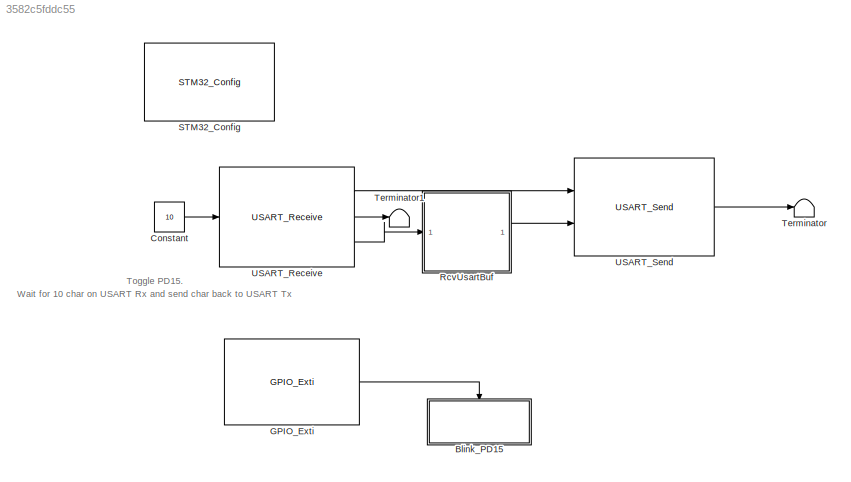
MODEL slx_3582c5fddc55
KIND model
CONFIG AbsTol = auto
CONFIG EnableMultiTasking = on
CONFIG FixedStep = 0.5
CONFIG MaxStep = auto
CONFIG MinStep = auto
CONFIG RelTol = 1e-3
CONFIG SampleTimeConstraint = Unconstrained
CONFIG SolverName = FixedStepDiscrete
CONFIG StartTime = 0.0
CONFIG StopTime = 10.0
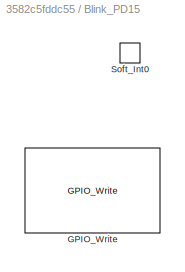
BLOCK [SubSystem] Blink_PD15
  Ports = [0, 0, 0, 1]
  RequestExecContextInheritance = off
  TreatAsAtomicUnit = on
BLOCK [Reference] Blink_PD15/GPIO_Write  REF=GPIO_Lib/GPIO_Write
  NameLocation = top
  Ports = []
  SourceBlock = GPIO_Lib/GPIO_Write
  SourceProductName = Target Support Package - STM32 Adapter
  SourceType = GPIO_Write
BLOCK [TriggerPort] Blink_PD15/Soft_Int0
  Ports = []
  StatesWhenEnabling = held
  TriggerType = function-call
  VariantControl = Variant
BLOCK [Constant] Constant
  OutDataTypeStr = uint16
  Value = 10
BLOCK [Reference] GPIO_Exti  REF=GPIO_Lib/GPIO_Exti
  NameLocation = top
  Ports = [0, 1]
  SourceBlock = GPIO_Lib/GPIO_Exti
  SourceProductName = Target Support Package - STM32 Adapter
  SourceType = GPIO_Exti
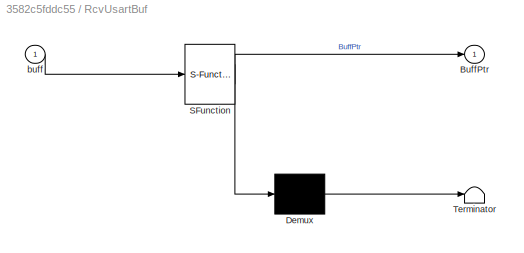
BLOCK [SubSystem] RcvUsartBuf
  ErrorFcn = Stateflow.Translate.translate
  PermitHierarchicalResolution = ExplicitOnly
  Ports = [1, 1]
  RequestExecContextInheritance = off
  SFBlockType = MATLAB Function
  TreatAsAtomicUnit = on
BLOCK [Demux] RcvUsartBuf/ Demux 
  Outputs = 1
  Ports = [1, 1]
BLOCK [S-Function] RcvUsartBuf/ SFunction 
  EnableBusSupport = off
  FunctionName = sf_sfun
  PortCounts = [1 2]
  Ports = [1, 2]
  SFcnIsStateOwnerBlock = off
  SFunctionDeploymentMode = off
  Tag = Stateflow S-Function 2
BLOCK [Terminator] RcvUsartBuf/ Terminator 
BLOCK [Outport] RcvUsartBuf/BuffPtr
  VectorParamsAs1DForOutWhenUnconnected = off
BLOCK [Inport] RcvUsartBuf/buff
BLOCK [Reference] STM32_Config  REF=STM32_Config_Lib/STM32_Config
  NameLocation = top
  Ports = []
  Priority = 0
  SourceBlock = STM32_Config_Lib/STM32_Config
  SourceProductName = Target Support Package - STM32 Adapter
  SourceType = STM32_Config
BLOCK [Terminator] Terminator
BLOCK [Terminator] Terminator1
BLOCK [Reference] USART_Receive  REF=USART_Lib/USART_Receive
  NameLocation = top
  Ports = [1, 3]
  SourceBlock = USART_Lib/USART_Receive
  SourceProductName = Target Support Package - STM32 Adapter
  SourceType = USART_Receive
BLOCK [Reference] USART_Send  REF=USART_Lib/USART_Send
  NameLocation = top
  Ports = [2, 1]
  SourceBlock = USART_Lib/USART_Send
  SourceProductName = Target Support Package - STM32 Adapter
  SourceType = USART_Send
ANNOTATION (root): Wait for 10 char on USART Rx and send char back to USART Tx Toggle PD15 .
LINE Constant:1 -> USART_Receive:1
LINE GPIO_Exti:1 -> Blink_PD15:trigger
LINE RcvUsartBuf:1 -> USART_Send:2
LINE USART_Receive:1 -> USART_Send:1
LINE USART_Receive:2 -> Terminator1:1
LINE USART_Receive:3 -> RcvUsartBuf:1
LINE USART_Send:1 -> Terminator:1
CHART RcvUsartBuf states=1 transitions=1
  STATE_LABEL 'eML_blk_kernel()'
  STATE_LABEL "SCRIPT:\nfunction BuffPtr = convert(buff)\nif coder.target('Sfun')\n    % Executing in MATLAB, Buff is null\n    BuffPtr = uint32(0);\n    %NbChar = uint16(0);\nelse\n    coder.cinclude('getBuffPtr.h');\n    % Executing in the generated code.\n    BuffPtr = coder.ceval('getBuffPtr',coder.rref(buff));\nend\nend\n"
CHART  states=0 transitions=0
